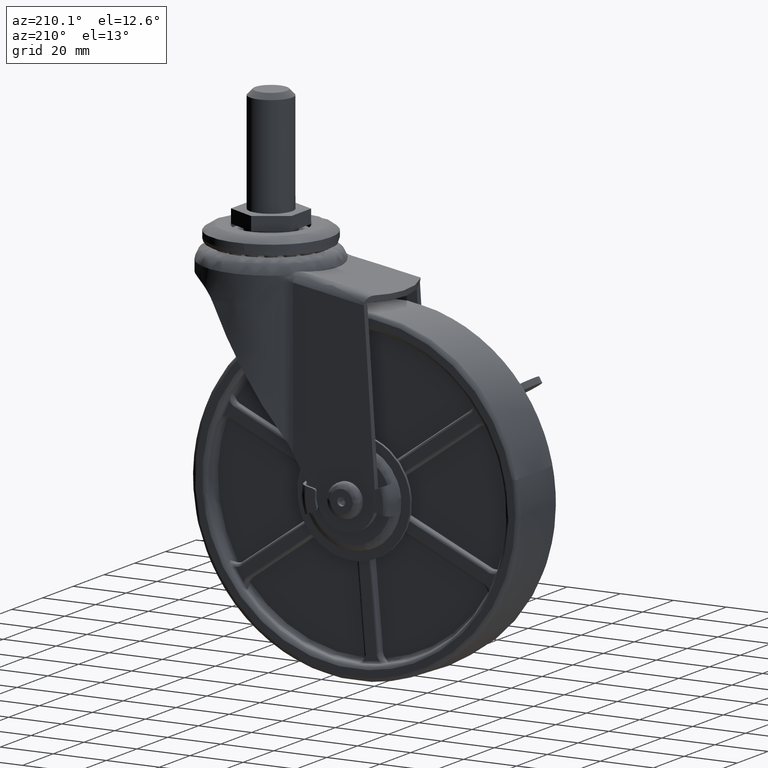
[diagram: clean part render]
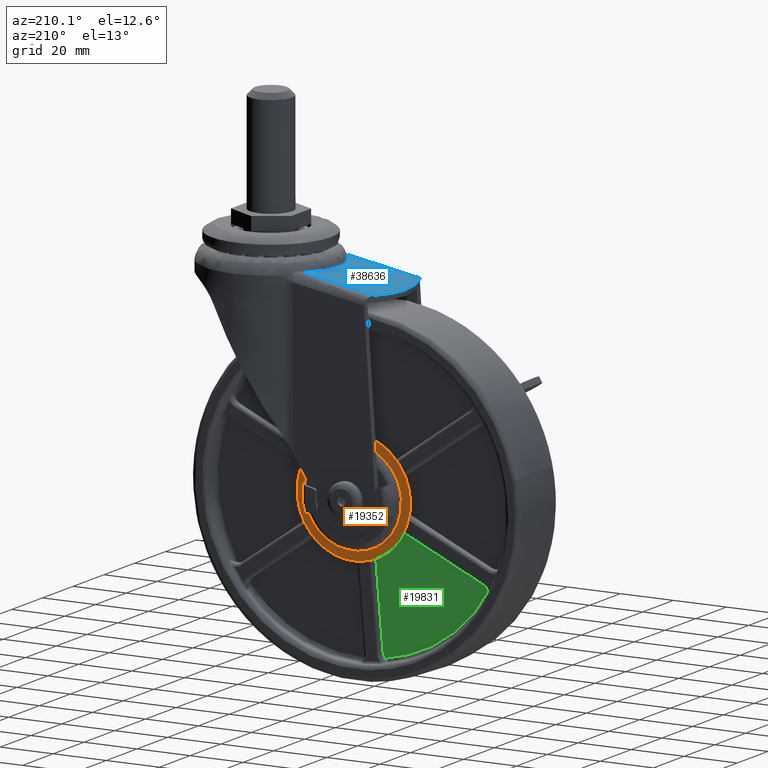
[diagram: same view with three faces highlighted in distinct colors, each labeled with its STEP entity id]
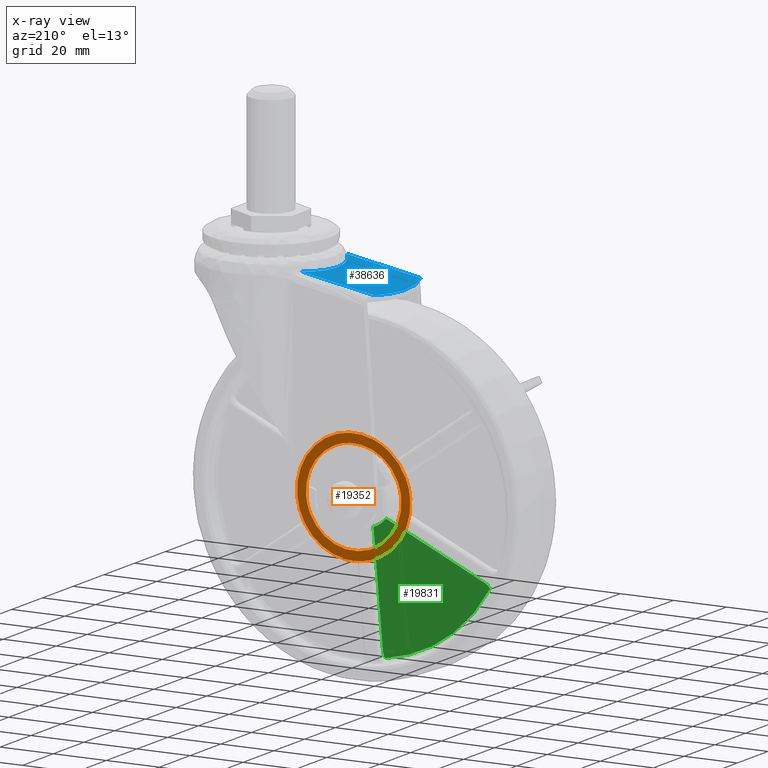
[diagram: x-ray of the same camera — body ghosted, the three highlighted faces saturated]
A machine part, auxiliary view with three faces highlighted in distinct colors.
The next image is the same camera in x-ray (body ghosted, the three faces saturated) — at least one of them is partly hidden behind the body in this view.
Their STEP definitions:

[orange] entity #19352 — the highlighted face is a freeform B-spline surface patch.
#309=CARTESIAN_POINT('',(-16.340091248230511,13.500000000000000,-13.818880137143299));
#310=VERTEX_POINT('',#309);
#316=CARTESIAN_POINT('',(0.0,13.500000000000000,-21.399999999999999));
#317=VERTEX_POINT('',#316);
#318=CARTESIAN_POINT('',(-16.340091248230511,13.500000000000000,-13.818880137143299));
#319=CARTESIAN_POINT('',(-15.214868110536930,13.499999999999989,-15.150117727256889));
#320=CARTESIAN_POINT('',(-12.994517886630550,13.500000000000050,-17.203525861866829));
#321=CARTESIAN_POINT('',(-9.108605905951583,13.499999999999980,-19.513024337189609));
#322=CARTESIAN_POINT('',(-4.890031080404196,13.499999999999931,-21.018480337881108));
#323=CARTESIAN_POINT('',(-1.694646430077800,13.500000000000041,-21.400331865517071));
#324=CARTESIAN_POINT('',(0.0,13.500000000000000,-21.399999999999999));
#325=B_SPLINE_CURVE_WITH_KNOTS('',3,(#318,#319,#320,#321,#322,#323,#324),.UNSPECIFIED.,.F.,.U.,(4,1,1,1,4),(0.000000042619231,5.229114573328426,9.005704198073230,13.508531560104631,18.592390645982601),.UNSPECIFIED.);
#326=EDGE_CURVE('',#310,#317,#325,.T.);
#328=CARTESIAN_POINT('',(21.399999999999810,13.500000000000000,0.000002866444080));
#329=VERTEX_POINT('',#328);
#330=CARTESIAN_POINT('',(0.0,13.500000000000000,-21.399999999999999));
#331=CARTESIAN_POINT('',(1.663287976377825,13.499999999999970,-21.400420238345191));
#332=CARTESIAN_POINT('',(4.026631220818017,13.500000000000011,-21.122959272499770));
#333=CARTESIAN_POINT('',(7.562106407247013,13.500000000000041,-20.097740138797779));
#334=CARTESIAN_POINT('',(10.206986251259810,13.499999999999950,-18.905882819717231));
#335=CARTESIAN_POINT('',(13.294717829581950,13.500000000000011,-16.897141940644111));
#336=CARTESIAN_POINT('',(15.953670130722291,13.499999999999989,-14.457450112395200));
#337=CARTESIAN_POINT('',(18.204148988691092,13.500000000000011,-11.422710864890449));
#338=CARTESIAN_POINT('',(19.618963285510130,13.500000000000011,-8.695691259780320));
#339=CARTESIAN_POINT('',(20.550257433893549,13.499999999999989,-6.142351785069906));
#340=CARTESIAN_POINT('',(21.219006840282230,13.500000000000000,-3.326433878904389));
#341=CARTESIAN_POINT('',(21.400107458482040,13.500000000000011,-1.225540531979673));
#342=CARTESIAN_POINT('',(21.399999999999810,13.500000000000000,0.000002866444080));
#343=B_SPLINE_CURVE_WITH_KNOTS('',3,(#330,#331,#332,#333,#334,#335,#336,#337,#338,#339,#340,#341,#342),.UNSPECIFIED.,.F.,.U.,(4,1,1,1,1,1,1,1,1,1,4),(0.000000047152412,4.989739262736318,7.090705496295659,11.030022834083541,13.656200504297511,18.120718657663542,21.797374606215278,24.948820783539880,27.312413231019509,29.938623778507019,33.615253929112981),.UNSPECIFIED.);
#344=EDGE_CURVE('',#317,#329,#343,.T.);
#346=CARTESIAN_POINT('',(0.0,13.500000000000000,21.399999999999999));
#347=VERTEX_POINT('',#346);
#348=CARTESIAN_POINT('',(21.399999999999810,13.500000000000000,0.000002866444080));
#349=CARTESIAN_POINT('',(21.400522837224951,13.499999999999980,1.838383603209328));
#350=CARTESIAN_POINT('',(21.036737434319630,13.500000000000030,4.639323146464608));
#351=CARTESIAN_POINT('',(19.747056618397171,13.499999999999970,8.463756984664492));
#352=CARTESIAN_POINT('',(17.966905643172922,13.500000000000069,11.895516202495029));
#353=CARTESIAN_POINT('',(15.358780551499040,13.499999999999970,15.113680626242720));
#354=CARTESIAN_POINT('',(12.302163206388631,13.500000000000050,17.621705384183290));
#355=CARTESIAN_POINT('',(9.192883858691404,13.499999999999851,19.433914119390160));
#356=CARTESIAN_POINT('',(5.164511427675274,13.499999999999989,20.959664684068638));
#357=CARTESIAN_POINT('',(1.925928136149577,13.500000000000149,21.400697251566179));
#358=CARTESIAN_POINT('',(0.0,13.500000000000000,21.399999999999999));
#359=B_SPLINE_CURVE_WITH_KNOTS('',3,(#348,#349,#350,#351,#352,#353,#354,#355,#356,#357,#358),.UNSPECIFIED.,.F.,.U.,(4,1,1,1,1,1,1,1,4),(0.000000048162804,5.514978762915774,8.403813868590266,12.080495931228199,17.070243452951260,20.746901163304660,23.898333314129580,27.837653241510001,33.615250697942088),.UNSPECIFIED.);
#360=EDGE_CURVE('',#329,#347,#359,.T.);
#362=CARTESIAN_POINT('',(-14.730787357325330,13.500000000000000,15.523011086910580));
#363=VERTEX_POINT('',#362);
#364=CARTESIAN_POINT('',(0.0,13.500000000000000,21.399999999999999));
#365=CARTESIAN_POINT('',(-1.353951125529549,13.500000000000000,21.400152843774158));
#366=CARTESIAN_POINT('',(-3.638662405087433,13.500000000000020,21.182409284987369));
#367=CARTESIAN_POINT('',(-6.838932348330409,13.499999999999970,20.347996452423988));
#368=CARTESIAN_POINT('',(-9.505141461566399,13.500000000000080,19.247450453650661));
#369=CARTESIAN_POINT('',(-12.215655978416160,13.499999999999890,17.666954178606389));
#370=CARTESIAN_POINT('',(-13.871502199493911,13.500000000000060,16.338574509307790));
#371=CARTESIAN_POINT('',(-14.730787357325330,13.500000000000000,15.523011086910580));
#372=B_SPLINE_CURVE_WITH_KNOTS('',3,(#364,#365,#366,#367,#368,#369,#370,#371),.UNSPECIFIED.,.F.,.U.,(4,1,1,1,1,4),(0.000000012001125,4.061841321746881,6.854369527973994,9.900723855724895,12.693258658235081,16.247364900692300),.UNSPECIFIED.);
#373=EDGE_CURVE('',#347,#363,#372,.T.);
#467=CARTESIAN_POINT('',(-21.399999999999810,13.500000000000000,-0.000002866443794));
#468=VERTEX_POINT('',#467);
#469=CARTESIAN_POINT('',(-14.730787357325330,13.500000000000000,15.523011086910580));
#470=CARTESIAN_POINT('',(-15.747961785144700,13.500000000000041,14.558001523200080));
#471=CARTESIAN_POINT('',(-17.234596919083462,13.499999999999950,12.839430904913920));
#472=CARTESIAN_POINT('',(-19.096353312948828,13.500000000000041,9.835298097075553));
#473=CARTESIAN_POINT('',(-20.315184186150820,13.500000000000000,6.998387844357716));
#474=CARTESIAN_POINT('',(-21.191414287149900,13.500000000000000,3.573015585568249));
#475=CARTESIAN_POINT('',(-21.400129709890180,13.500000000000011,1.311633825515720));
#476=CARTESIAN_POINT('',(-21.399999999999810,13.500000000000000,-0.000002866443794));
#477=B_SPLINE_CURVE_WITH_KNOTS('',3,(#469,#470,#471,#472,#473,#474,#475,#476),.UNSPECIFIED.,.F.,.U.,(4,1,1,1,1,4),(0.000000034338541,4.206264730614247,6.784314775236760,10.583488409679600,13.432911014778639,17.367803150609738),.UNSPECIFIED.);
#478=EDGE_CURVE('',#363,#468,#477,.T.);
#480=CARTESIAN_POINT('',(-21.399999999999810,13.500000000000000,-0.000002866443794));
#481=CARTESIAN_POINT('',(-21.400079081679980,13.499999999999950,-1.173653053832703));
#482=CARTESIAN_POINT('',(-21.200000210882980,13.500000000000050,-3.599180172407000));
#483=CARTESIAN_POINT('',(-20.317789033059359,13.500000000000080,-7.021814759592695));
#484=CARTESIAN_POINT('',(-18.761039630917232,13.499999999999829,-10.537841002528101));
#485=CARTESIAN_POINT('',(-17.300245549006871,13.500000000000110,-12.683895932496160));
#486=CARTESIAN_POINT('',(-16.340091248230511,13.500000000000000,-13.818880137143299));
#487=B_SPLINE_CURVE_WITH_KNOTS('',3,(#480,#481,#482,#483,#484,#485,#486),.UNSPECIFIED.,.F.,.U.,(4,1,1,1,4),(0.000000023521096,3.520958515425086,7.276664016549494,10.562871348136330,15.022759430268010),.UNSPECIFIED.);
#488=EDGE_CURVE('',#468,#310,#487,.T.);
#2093=CARTESIAN_POINT('',(-4.433393002213648,13.500000000935840,-17.445504821821920));
#2094=VERTEX_POINT('',#2093);
#2095=CARTESIAN_POINT('',(0.0,13.500000000000000,-18.000017000000000));
#2096=VERTEX_POINT('',#2095);
#2097=CARTESIAN_POINT('',(-4.433393002213648,13.500000000935840,-17.445504821821920));
#2098=CARTESIAN_POINT('',(-2.986260319714394,13.500000000314810,-17.813484787852019));
#2099=CARTESIAN_POINT('',(-1.493189815424896,13.499999999999570,-18.000275564264282));
#2100=CARTESIAN_POINT('',(0.0,13.500000000000000,-18.000017000000000));
#2101=B_SPLINE_CURVE_WITH_KNOTS('',3,(#2097,#2098,#2099,#2100),.UNSPECIFIED.,.F.,.U.,(4,4),(3.239429E-009,4.479498119625671),.UNSPECIFIED.);
#2102=EDGE_CURVE('',#2094,#2096,#2101,.T.);
#2233=CARTESIAN_POINT('',(-17.998595794326139,13.500000001384491,0.226188931546606));
#2234=VERTEX_POINT('',#2233);
#2242=CARTESIAN_POINT('',(0.0,13.500000000000000,18.000017000000000));
#2243=VERTEX_POINT('',#2242);
#2244=CARTESIAN_POINT('',(0.0,13.500000000000000,18.000017000000000));
#2245=CARTESIAN_POINT('',(-1.168669403102004,13.500000000000020,18.000151180933852));
#2246=CARTESIAN_POINT('',(-3.213795334631417,13.500000000015509,17.800130359151140));
#2247=CARTESIAN_POINT('',(-5.897583141011505,13.500000000073021,17.063609280102789));
#2248=CARTESIAN_POINT('',(-8.389637953722303,13.500000000155319,16.004951668022301));
#2249=CARTESIAN_POINT('',(-10.822491650961510,13.500000000272660,14.500361228468460));
#2250=CARTESIAN_POINT('',(-13.006676951381641,13.500000000424990,12.543902251422329));
#2251=CARTESIAN_POINT('',(-14.866564539392909,13.500000000601119,10.282179487757579));
#2252=CARTESIAN_POINT('',(-16.349679728367381,13.500000000798600,7.750753850901850));
#2253=CARTESIAN_POINT('',(-17.618334155012061,13.500000001066050,4.311878771626555));
#2254=CARTESIAN_POINT('',(-17.979777297239568,13.500000001265120,1.760005063839128));
#2255=CARTESIAN_POINT('',(-17.998595794326139,13.500000001384491,0.226188931546606));
#2256=B_SPLINE_CURVE_WITH_KNOTS('',3,(#2244,#2245,#2246,#2247,#2248,#2249,#2250,#2251,#2252,#2253,#2254,#2255),.UNSPECIFIED.,.F.,.U.,(4,1,1,1,1,1,1,1,1,4),(0.000000075657180,3.506005224716045,6.135569358913820,8.326861325902531,11.613796140206899,14.681503834555841,17.091930392338849,20.378864855306070,23.446671941469251,28.048338887037861),.UNSPECIFIED.);
#2257=EDGE_CURVE('',#2243,#2234,#2256,.T.);
#2259=CARTESIAN_POINT('',(18.000016999999730,13.500000000000000,0.000003135330206));
#2260=VERTEX_POINT('',#2259);
#2261=CARTESIAN_POINT('',(18.000016999999730,13.500000000000000,0.000003135330206));
#2262=CARTESIAN_POINT('',(18.000112165669389,13.500000000000011,1.104458097031428));
#2263=CARTESIAN_POINT('',(17.789354571452812,13.499999999999980,3.387016790538037));
#2264=CARTESIAN_POINT('',(16.903262321683091,13.500000000000041,6.442529763863178));
#2265=CARTESIAN_POINT('',(15.478333125969920,13.499999999999890,9.361969582246278));
#2266=CARTESIAN_POINT('',(13.441503031936101,13.500000000000140,12.180409712660129));
#2267=CARTESIAN_POINT('',(10.900744453682240,13.499999999999890,14.454853783375070));
#2268=CARTESIAN_POINT('',(8.125734036383765,13.500000000000060,16.141146912287329));
#2269=CARTESIAN_POINT('',(5.804294709802464,13.499999999999840,17.102707889019939));
#2270=CARTESIAN_POINT('',(3.018804922205105,13.500000000000441,17.818627284997611));
#2271=CARTESIAN_POINT('',(1.178098401782739,13.499999999999410,18.000164423059289));
#2272=CARTESIAN_POINT('',(0.0,13.500000000000000,18.000017000000000));
#2273=B_SPLINE_CURVE_WITH_KNOTS('',3,(#2261,#2262,#2263,#2264,#2265,#2266,#2267,#2268,#2269,#2270,#2271,#2272),.UNSPECIFIED.,.F.,.U.,(4,1,1,1,1,1,1,1,1,4),(0.000000078971873,3.313381056926140,6.847739422871907,9.498495268370380,13.032856366903070,17.229769026171621,19.659623693720629,22.752180681516649,24.740257640534320,28.274536228323040),.UNSPECIFIED.);
#2274=EDGE_CURVE('',#2260,#2243,#2273,.T.);
#2276=CARTESIAN_POINT('',(0.0,13.500000000000000,-18.000017000000000));
#2277=CARTESIAN_POINT('',(0.809935760697215,13.500000000000000,-18.000014325269859));
#2278=CARTESIAN_POINT('',(2.945274704178189,13.500000000000020,-17.855846572747801));
#2279=CARTESIAN_POINT('',(6.035303697452955,13.499999999999980,-17.081923055977651));
#2280=CARTESIAN_POINT('',(8.841150674149359,13.500000000000030,-15.754550917185050));
#2281=CARTESIAN_POINT('',(11.049275252515031,13.499999999999940,-14.279100175803570));
#2282=CARTESIAN_POINT('',(13.206483480695390,13.500000000000091,-12.371874021590630));
#2283=CARTESIAN_POINT('',(15.042597494257940,13.499999999999970,-10.048576901130801));
#2284=CARTESIAN_POINT('',(16.520405808778321,13.500000000000020,-7.323943385929010));
#2285=CARTESIAN_POINT('',(17.665781495085689,13.499999999999901,-4.123138058072703));
#2286=CARTESIAN_POINT('',(18.000508022527260,13.500000000000110,-1.546297695380927));
#2287=CARTESIAN_POINT('',(18.000016999999730,13.500000000000000,0.000003135330206));
#2288=B_SPLINE_CURVE_WITH_KNOTS('',3,(#2276,#2277,#2278,#2279,#2280,#2281,#2282,#2283,#2284,#2285,#2286,#2287),.UNSPECIFIED.,.F.,.U.,(4,1,1,1,1,1,1,1,1,4),(0.000000077872524,2.429837970647267,6.405945601404465,9.498496455275301,11.707452031824751,14.358144436290431,18.113341176127630,20.543213757737291,23.635762222306241,28.274539762593101),.UNSPECIFIED.);
#2289=EDGE_CURVE('',#2096,#2260,#2288,.T.);
#2311=CARTESIAN_POINT('',(-17.998595794326139,13.500000001384491,0.226188931546606));
#2312=CARTESIAN_POINT('',(-18.012009011261121,13.500000001217400,-0.837147825899686));
#2313=CARTESIAN_POINT('',(-17.821273663509700,13.500000000861339,-3.341994548061356));
#2314=CARTESIAN_POINT('',(-16.777764866430321,13.500000000484540,-6.909804114405955));
#2315=CARTESIAN_POINT('',(-14.957659729274591,13.500000000279750,-10.213413080066781));
#2316=CARTESIAN_POINT('',(-12.861870560345670,13.500000000245191,-12.719834101762411));
#2317=CARTESIAN_POINT('',(-10.706549091355731,13.500000000326310,-14.543894010651050));
#2318=CARTESIAN_POINT('',(-8.001082361441751,13.500000000519380,-16.246419979599850));
#2319=CARTESIAN_POINT('',(-5.888593881468939,13.500000000747310,-17.076094679747129));
#2320=CARTESIAN_POINT('',(-4.433393002213648,13.500000000935840,-17.445504821821920));
#2321=B_SPLINE_CURVE_WITH_KNOTS('',3,(#2311,#2312,#2313,#2314,#2315,#2316,#2317,#2318,#2319,#2320),.UNSPECIFIED.,.F.,.U.,(4,1,1,1,1,1,1,4),(0.000000111610213,3.190302646129929,7.506635507691637,11.072285466768641,14.450232882631880,17.265212452149800,19.517224060159428,24.021177427301019),.UNSPECIFIED.);
#2322=EDGE_CURVE('',#2234,#2094,#2321,.T.);
#19332=CARTESIAN_POINT('',(-23.537859515269300,13.500000000000000,23.537859515269520));
#19333=CARTESIAN_POINT('',(-23.537859515269300,13.500000000000000,-23.537861045916792));
#19334=CARTESIAN_POINT('',(23.537861045916578,13.500000000000000,23.537859515269520));
#19335=CARTESIAN_POINT('',(23.537861045916578,13.500000000000000,-23.537861045916792));
#19336=B_SPLINE_SURFACE_WITH_KNOTS('',1,1,((#19332,#19334),(#19333,#19335)),.UNSPECIFIED.,.F.,.F.,.U.,(2,2),(2,2),(0.0,47.075720561186301),(0.0,47.075720561185882),.UNSPECIFIED.);
#19337=ORIENTED_EDGE('',*,*,#326,.F.);
#19338=ORIENTED_EDGE('',*,*,#488,.F.);
#19339=ORIENTED_EDGE('',*,*,#478,.F.);
#19340=ORIENTED_EDGE('',*,*,#373,.F.);
#19341=ORIENTED_EDGE('',*,*,#360,.F.);
#19342=ORIENTED_EDGE('',*,*,#344,.F.);
#19343=EDGE_LOOP('',(#19337,#19338,#19339,#19340,#19341,#19342));
#19344=FACE_OUTER_BOUND('',#19343,.T.);
#19345=ORIENTED_EDGE('',*,*,#2257,.T.);
#19346=ORIENTED_EDGE('',*,*,#2322,.T.);
#19347=ORIENTED_EDGE('',*,*,#2102,.T.);
#19348=ORIENTED_EDGE('',*,*,#2289,.T.);
#19349=ORIENTED_EDGE('',*,*,#2274,.T.);
#19350=EDGE_LOOP('',(#19345,#19346,#19347,#19348,#19349));
#19351=FACE_BOUND('',#19350,.T.);
#19352=ADVANCED_FACE('',(#19344,#19351),#19336,.F.);

[blue] entity #38636 — the highlighted face is a freeform B-spline surface patch.
#36881=CARTESIAN_POINT('',(19.034430391100599,14.999990000000000,73.572204257533613));
#36882=VERTEX_POINT('',#36881);
#37046=CARTESIAN_POINT('',(19.034438270530799,-15.0,73.572205646889699));
#37047=VERTEX_POINT('',#37046);
#37058=CARTESIAN_POINT('',(19.034438270530799,-15.0,73.572205646889699));
#37059=CARTESIAN_POINT('',(16.541887088934779,-11.836359299278620,73.132701634932189));
#37060=CARTESIAN_POINT('',(15.221963911905430,-7.937668755745642,72.899963572795954));
#37061=CARTESIAN_POINT('',(13.919092742890809,-4.089345160494640,72.670232239664813));
#37062=CARTESIAN_POINT('',(13.920163713295430,0.007485223726400,72.670421080637468));
#37063=CARTESIAN_POINT('',(13.921233571013939,4.100059200426331,72.670609725413541));
#37064=CARTESIAN_POINT('',(15.225297724388961,7.947510309361250,72.900551413869167));
#37065=CARTESIAN_POINT('',(16.544525923524670,11.839700723895289,73.133166932655143));
#37066=CARTESIAN_POINT('',(19.034430391100599,14.999990000000000,73.572204257533613));
#37067=B_SPLINE_CURVE_WITH_KNOTS('',2,(#37058,#37059,#37060,#37061,#37062,#37063,#37064,#37065,#37066),.UNSPECIFIED.,.F.,.U.,(3,2,2,2,3),(0.0,0.250000000000000,0.500000000000000,0.750000000000000,1.0),.UNSPECIFIED.);
#37068=EDGE_CURVE('',#37047,#36882,#37067,.T.);
#37774=CARTESIAN_POINT('',(-8.684266168760072,14.999990000000000,68.684650319126703));
#37775=VERTEX_POINT('',#37774);
#37805=CARTESIAN_POINT('',(19.034430391100599,14.999990000000000,73.572204257533613));
#37806=CARTESIAN_POINT('',(-8.684266168760072,14.999990000000000,68.684650319126703));
#37807=QUASI_UNIFORM_CURVE('',1,(#37805,#37806),.UNSPECIFIED.,.F.,.U.);
#37808=EDGE_CURVE('',#36882,#37775,#37807,.T.);
#37829=CARTESIAN_POINT('',(-8.684261513221999,-15.0,68.684651140023703));
#37830=VERTEX_POINT('',#37829);
#37831=CARTESIAN_POINT('',(-8.684261513221999,-15.0,68.684651140023703));
#37832=CARTESIAN_POINT('',(19.034438270530799,-15.0,73.572205646889699));
#37833=QUASI_UNIFORM_CURVE('',1,(#37831,#37832),.UNSPECIFIED.,.F.,.U.);
#37834=EDGE_CURVE('',#37830,#37047,#37833,.T.);
#38570=CARTESIAN_POINT('',(-8.684261513221999,-15.0,68.684651140023703));
#38571=CARTESIAN_POINT('',(-9.431777235903136,-13.394486479184700,68.552843953256414));
#38572=CARTESIAN_POINT('',(-10.828830518140240,-9.689949326461674,68.306505772923302));
#38573=CARTESIAN_POINT('',(-11.920879387607471,-4.124201691703821,68.113948098308882));
#38574=CARTESIAN_POINT('',(-12.081517582933930,1.134092043779141,68.085623251124417));
#38575=CARTESIAN_POINT('',(-11.667854470837440,5.317884790121686,68.158563216693423));
#38576=CARTESIAN_POINT('',(-10.719161125647510,9.905253661226450,68.325843445242839));
#38577=CARTESIAN_POINT('',(-9.601859968237953,13.029643587348181,68.522853779422448));
#38578=CARTESIAN_POINT('',(-8.684266168760072,14.999990000000000,68.684650319126703));
#38579=B_SPLINE_CURVE_WITH_KNOTS('',3,(#38570,#38571,#38572,#38573,#38574,#38575,#38576,#38577,#38578),.UNSPECIFIED.,.F.,.U.,(4,1,1,1,1,1,4),(0.000000036377514,5.327724433327418,11.866327666379309,16.951862194562469,21.068770382014169,24.459168640684009,30.997749652207581),.UNSPECIFIED.);
#38580=EDGE_CURVE('',#37830,#37775,#38579,.T.);
#38625=CARTESIAN_POINT('',(20.584609608610780,-16.498499442354198,73.845542670954842));
#38626=CARTESIAN_POINT('',(-13.550177997347550,-16.498499442354198,67.826658801726381));
#38627=CARTESIAN_POINT('',(20.584609608610780,16.498490247016630,73.845542670954856));
#38628=CARTESIAN_POINT('',(-13.550177997347550,16.498490247016630,67.826658801726381));
#38629=B_SPLINE_SURFACE_WITH_KNOTS('',1,1,((#38625,#38627),(#38626,#38628)),.UNSPECIFIED.,.F.,.F.,.U.,(2,2),(2,2),(0.0,34.661371697253202),(0.0,32.996989689370842),.UNSPECIFIED.);
#38630=ORIENTED_EDGE('',*,*,#37834,.T.);
#38631=ORIENTED_EDGE('',*,*,#37068,.T.);
#38632=ORIENTED_EDGE('',*,*,#37808,.T.);
#38633=ORIENTED_EDGE('',*,*,#38580,.F.);
#38634=EDGE_LOOP('',(#38630,#38631,#38632,#38633));
#38635=FACE_OUTER_BOUND('',#38634,.T.);
#38636=ADVANCED_FACE('',(#38635),#38629,.F.);

[green] entity #19831 — the highlighted face is a freeform B-spline surface patch.
#15854=CARTESIAN_POINT('',(-3.754210223986700,7.500000000000000,-54.613724710466002));
#15855=VERTEX_POINT('',#15854);
#15884=CARTESIAN_POINT('',(-3.0,7.500000000000000,-52.276023119174297));
#15885=VERTEX_POINT('',#15884);
#15886=CARTESIAN_POINT('',(-3.754210223986700,7.500000000000000,-54.613724710466002));
#15887=CARTESIAN_POINT('',(-3.465014062370345,7.500000000000012,-54.212960556378867));
#15888=CARTESIAN_POINT('',(-3.106070472881540,7.499999999999981,-53.446348486445132));
#15889=CARTESIAN_POINT('',(-2.999937833910386,7.500000000000013,-52.614113201271252));
#15890=CARTESIAN_POINT('',(-3.0,7.500000000000000,-52.276023119174297));
#15891=B_SPLINE_CURVE_WITH_KNOTS('',3,(#15886,#15887,#15888,#15889,#15890),.UNSPECIFIED.,.F.,.U.,(4,1,4),(0.000000055860119,1.482426929521576,2.496726600822582),.UNSPECIFIED.);
#15892=EDGE_CURVE('',#15855,#15885,#15891,.T.);
#15975=CARTESIAN_POINT('',(-3.0,7.500000000000000,-11.029539681949579));
#15976=VERTEX_POINT('',#15975);
#15977=CARTESIAN_POINT('',(-3.0,7.500000000000000,-52.276023119174297));
#15978=CARTESIAN_POINT('',(-3.0,7.500000000000000,-11.029539681949579));
#15979=QUASI_UNIFORM_CURVE('',1,(#15977,#15978),.UNSPECIFIED.,.F.,.U.);
#15980=EDGE_CURVE('',#15885,#15976,#15979,.T.);
#16897=CARTESIAN_POINT('',(-45.419767882560201,7.500000000000000,-30.558103780352699));
#16898=VERTEX_POINT('',#16897);
#16930=CARTESIAN_POINT('',(-43.772364030027653,7.500000000000000,-28.736087770940451));
#16931=VERTEX_POINT('',#16930);
#16937=CARTESIAN_POINT('',(-43.772364030027653,7.500000000000000,-28.736087770940451));
#16938=CARTESIAN_POINT('',(-44.200589845570050,7.499999999999998,-28.982802645805869));
#16939=CARTESIAN_POINT('',(-44.842604258792242,7.500000000000013,-29.534487700662758));
#16940=CARTESIAN_POINT('',(-45.281031076161987,7.499999999999980,-30.249788884976351));
#16941=CARTESIAN_POINT('',(-45.419767882560201,7.500000000000000,-30.558103780352699));
#16942=B_SPLINE_CURVE_WITH_KNOTS('',3,(#16937,#16938,#16939,#16940,#16941),.UNSPECIFIED.,.F.,.U.,(4,1,4),(0.000000055861244,1.482426929521927,2.496726600822534),.UNSPECIFIED.);
#16943=EDGE_CURVE('',#16931,#16898,#16942,.T.);
#16984=CARTESIAN_POINT('',(-8.051861556616881,7.500000000000000,-8.112846052328100));
#16985=VERTEX_POINT('',#16984);
#16996=CARTESIAN_POINT('',(-8.051861556616881,7.500000000000000,-8.112846052328100));
#16997=CARTESIAN_POINT('',(-43.772364030027653,7.500000000000000,-28.736087770940451));
#16998=QUASI_UNIFORM_CURVE('',1,(#16996,#16997),.UNSPECIFIED.,.F.,.U.);
#16999=EDGE_CURVE('',#16985,#16931,#16998,.T.);
#19794=CARTESIAN_POINT('',(-45.419767882560201,7.500000000000000,-30.558103780352699));
#19795=CARTESIAN_POINT('',(-43.826873325538607,7.499999999999994,-32.926009135678449));
#19796=CARTESIAN_POINT('',(-40.269519331717433,7.500000000000000,-37.411750006949589));
#19797=CARTESIAN_POINT('',(-33.663895942280398,7.499999999999995,-43.492079888467408));
#19798=CARTESIAN_POINT('',(-26.677960314319350,7.500000000000030,-48.038068085763364));
#19799=CARTESIAN_POINT('',(-20.055659225213880,7.499999999999895,-51.055946632561742));
#19800=CARTESIAN_POINT('',(-12.775649858333081,7.500000000000084,-53.448006488511282));
#19801=CARTESIAN_POINT('',(-7.377862580983716,7.499999999999996,-54.365118133998592));
#19802=CARTESIAN_POINT('',(-3.754210223986700,7.500000000000000,-54.613724710466002));
#19803=B_SPLINE_CURVE_WITH_KNOTS('',3,(#19794,#19795,#19796,#19797,#19798,#19799,#19800,#19801,#19802),.UNSPECIFIED.,.F.,.U.,(4,1,1,1,1,1,4),(0.000000018347606,8.561454769948639,17.122922830193598,26.851801135277011,33.467509980501617,38.915716948786681,49.812110439454479),.UNSPECIFIED.);
#19804=EDGE_CURVE('',#16898,#15855,#19803,.T.);
#19811=CARTESIAN_POINT('',(-47.538636798902061,7.500000000000000,-5.790127419615635));
#19812=CARTESIAN_POINT('',(-47.538636798902061,7.500000000000000,-56.936441264427202));
#19813=CARTESIAN_POINT('',(-0.881131462920420,7.500000000000000,-5.790127419615635));
#19814=CARTESIAN_POINT('',(-0.881131462920420,7.500000000000000,-56.936441264427202));
#19815=B_SPLINE_SURFACE_WITH_KNOTS('',1,1,((#19811,#19813),(#19812,#19814)),.UNSPECIFIED.,.F.,.F.,.U.,(2,2),(2,2),(0.0,51.146313844811559),(0.0,46.657505335981639),.UNSPECIFIED.);
#19816=ORIENTED_EDGE('',*,*,#15980,.F.);
#19817=ORIENTED_EDGE('',*,*,#15892,.F.);
#19818=ORIENTED_EDGE('',*,*,#19804,.F.);
#19819=ORIENTED_EDGE('',*,*,#16943,.F.);
#19820=ORIENTED_EDGE('',*,*,#16999,.F.);
#19821=CARTESIAN_POINT('',(-8.051861556616881,7.500000000000000,-8.112846052328100));
#19822=CARTESIAN_POINT('',(-7.397831171816684,7.499999999999998,-8.762257484880959));
#19823=CARTESIAN_POINT('',(-5.833751920535286,7.500000000000004,-9.977365466575874));
#19824=CARTESIAN_POINT('',(-4.008055330759671,7.499999999999997,-10.755722336784180));
#19825=CARTESIAN_POINT('',(-3.0,7.500000000000000,-11.029539681949579));
#19826=B_SPLINE_CURVE_WITH_KNOTS('',3,(#19821,#19822,#19823,#19824,#19825),.UNSPECIFIED.,.F.,.U.,(4,1,4),(0.000000015627240,2.765014956582316,5.898686501279556),.UNSPECIFIED.);
#19827=EDGE_CURVE('',#16985,#15976,#19826,.T.);
#19828=ORIENTED_EDGE('',*,*,#19827,.T.);
#19829=EDGE_LOOP('',(#19816,#19817,#19818,#19819,#19820,#19828));
#19830=FACE_OUTER_BOUND('',#19829,.T.);
#19831=ADVANCED_FACE('',(#19830),#19815,.F.);